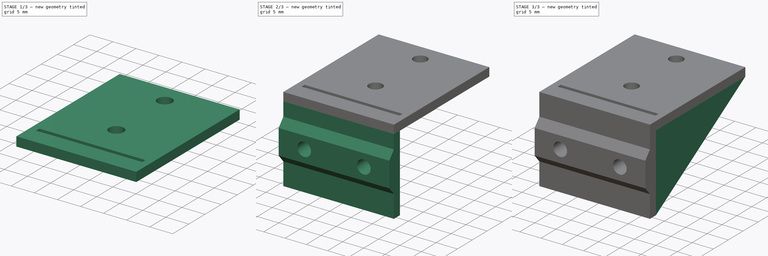
[diagram: build sequence overview — one tinted view per stage of 3, left to right]
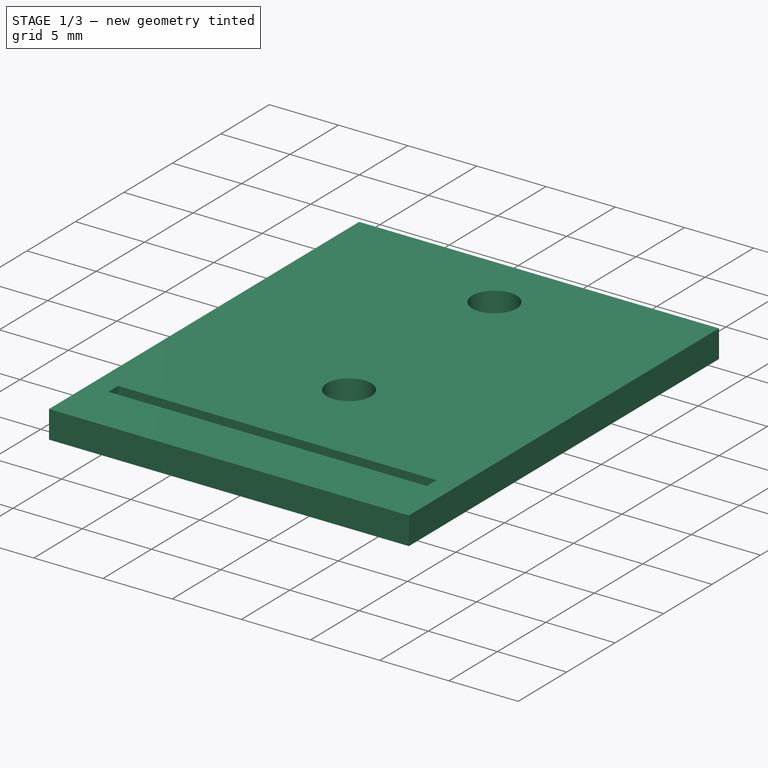
[diagram: stage 1 of 3 — iso view after this stage's code; geometry added in this stage tinted green]
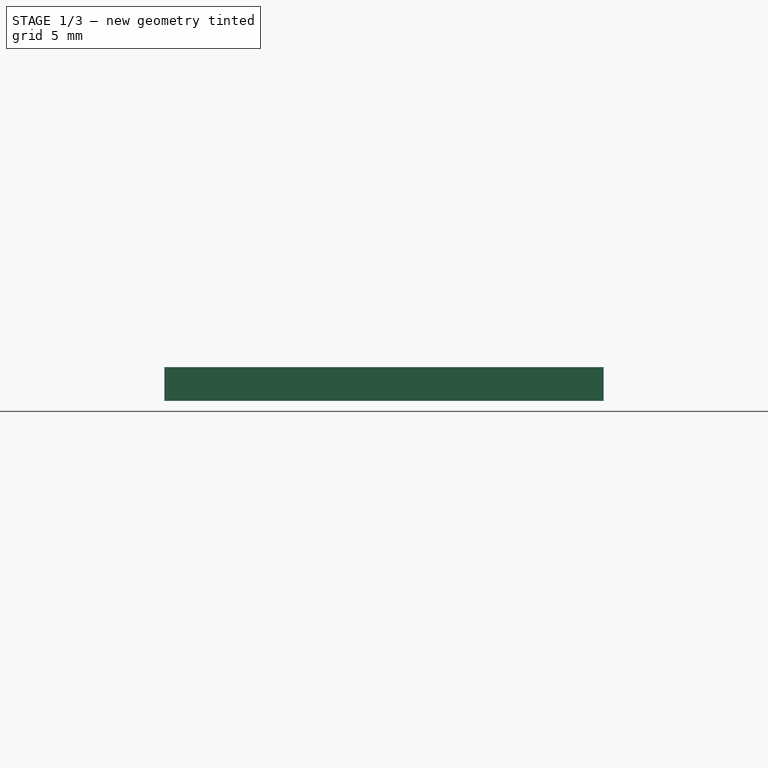
[diagram: stage 1 of 3 — front view after this stage's code; geometry added in this stage tinted green]
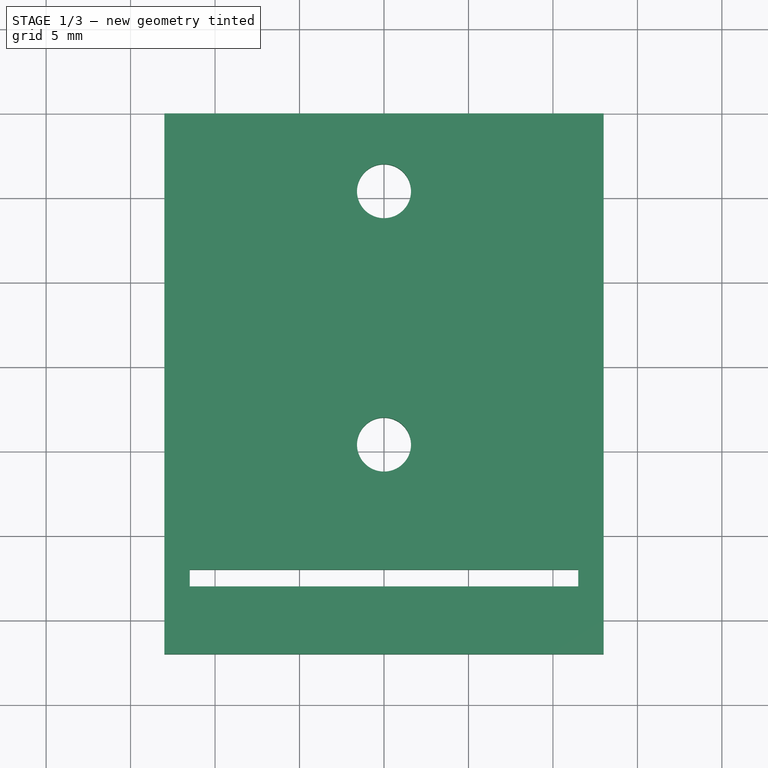
[diagram: stage 1 of 3 — top view after this stage's code; geometry added in this stage tinted green]
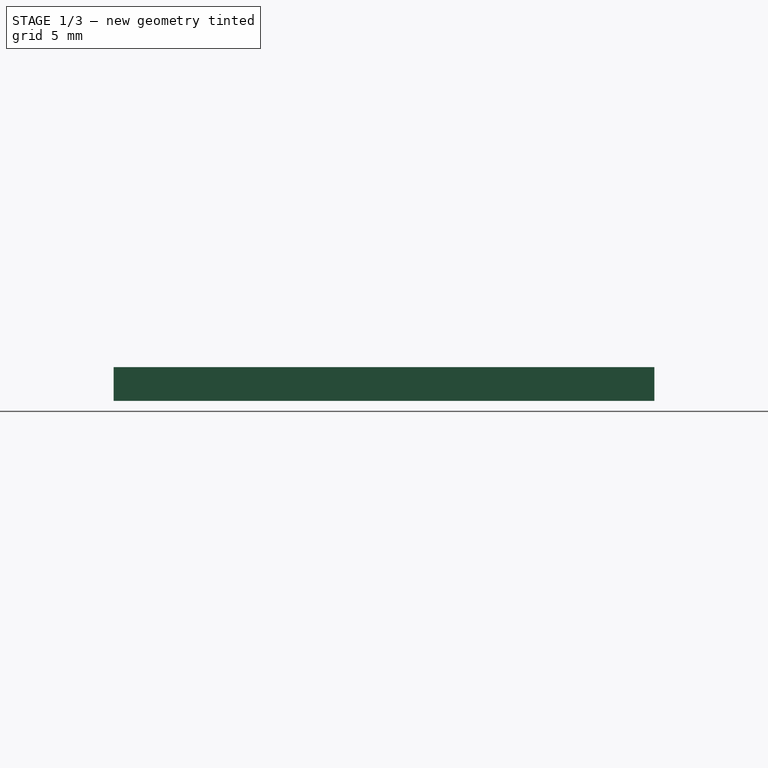
[diagram: stage 1 of 3 — right view after this stage's code; geometry added in this stage tinted green]
FCSTD DOCUMENT  (FreeCAD 0.19R24366 (Git))
Label: case-camera-full
License: All rights reserved
LicenseURL: http://en.wikipedia.org/wiki/All_rights_reserved
objects: PartDesign::Pad×5, Sketcher::SketchObject×4, PartDesign::Pocket×1, PartDesign::LinearPattern×1, PartDesign::Body×1
note: 18 computed .brp shape members not serialized (recipe doc carries the construction recipe); baked Part::Feature solids carry a one-line shape summary decoded from their .brp

FEATURE [Sketcher::SketchObject] Sketch010
  FullyConstrained = true
  MapMode = 5
  Support = -> [XY_Plane002]
  sketch-geometry (17):
    g0: LineSegment StartX=-13 StartY=15 StartZ=0 EndX=13 EndY=15 EndZ=0
    g1: LineSegment StartX=13 StartY=15 StartZ=0 EndX=13 EndY=-15 EndZ=0
    g2: LineSegment StartX=13 StartY=-15 StartZ=0 EndX=-13 EndY=-15 EndZ=0
    g3: LineSegment StartX=-13 StartY=-15 StartZ=0 EndX=-13 EndY=15 EndZ=0
    g4: LineSegment StartX=-13 StartY=15 StartZ=0 EndX=13 EndY=-15 EndZ=0
    g5: LineSegment StartX=13 StartY=15 StartZ=0 EndX=-13 EndY=-15 EndZ=0
    g6: Circle CenterX=0 CenterY=10.4 CenterZ=0 NormalX=0 NormalY=0 NormalZ=1 AngleXU=0 Radius=1.6
    g7: Circle CenterX=0 CenterY=-4.6 CenterZ=0 NormalX=0 NormalY=0 NormalZ=1 AngleXU=0 Radius=1.6
    g8: GeomPoint X=0 Y=12 Z=0
    g9: GeomPoint X=0 Y=15 Z=0
    g10: GeomPoint X=-13 Y=-12 Z=0
    g11: LineSegment StartX=-11.5 StartY=-12 StartZ=0 EndX=11.5 EndY=-12 EndZ=0
    g12: LineSegment StartX=11.5 StartY=-12 StartZ=0 EndX=11.5 EndY=-13 EndZ=0
    g13: LineSegment StartX=11.5 StartY=-13 StartZ=0 EndX=-11.5 EndY=-13 EndZ=0
    g14: LineSegment StartX=-11.5 StartY=-13 StartZ=0 EndX=-11.5 EndY=-12 EndZ=0
    g15: LineSegment StartX=-11.5 StartY=-12 StartZ=0 EndX=0 EndY=-12 EndZ=0
    g16: LineSegment StartX=0 StartY=-12 StartZ=0 EndX=11.5 EndY=-12 EndZ=0
  constraints (45):
    c: Coincident(g0,g1)
    c: Coincident(g1,g2)
    c: Coincident(g2,g3)
    c: Coincident(g3,g0)
    c: Horizontal(g0)
    c: Horizontal(g2)
    c: Vertical(g1)
    c: Vertical(g3)
    c: Coincident(g4,g0)
    c: Coincident(g4,g1)
    c: Coincident(g5,g0)
    c: Coincident(g5,g2)
    c: PointOnObject(g-1,g5)
    c: PointOnObject(g-1,g4)
    c: DistanceX(g2,g2) = 26
    c: PointOnObject(g6,g-2)
    c: PointOnObject(g7,g-2)
    c: DistanceY(g7,g6) = 15
    c: Equal(g7,g6)
    c: Radius(g6) = 1.6
    c: DistanceY(g3,g3) = 30
    c: PointOnObject(g8,g6)
    c: PointOnObject(g8,g-2)
    c: PointOnObject(g9,g0)
    c: PointOnObject(g9,g-2)
    c: DistanceY(g8,g9) = 3
    c: PointOnObject(g10,g3)
    c: DistanceY(g10,g0) = 27
    c: Coincident(g11,g12)
    c: Coincident(g12,g13)
    c: Coincident(g13,g14)
    c: Coincident(g14,g11)
    c: Horizontal(g11)
    c: Horizontal(g13)
    c: Vertical(g12)
    c: Vertical(g14)
    c: DistanceX(g13,g13) = 23
    c: Coincident(g15,g11)
    c: Coincident(g16,g15)
    c: Coincident(g16,g11)
    c: PointOnObject(g15,g-2)
    c: Equal(g15,g16)
    c: PointOnObject(g15,g11)
    c: DistanceY(g14,g14) = 1
    c: Horizontal(g11,g10)
FEATURE [PartDesign::Pad] Pad009
  Direction = (1,1,1)
  Length = 2
  Length2 = 100
  Profile = -> Sketch010
  Type = 0
FEATURE [PartDesign::Pad] Pad010
  BaseFeature = -> Pad009
  Direction = (1,1,1)
  Length = 2
  Length2 = 100
  Profile = -> Pad009 [Face3]
  Type = 0
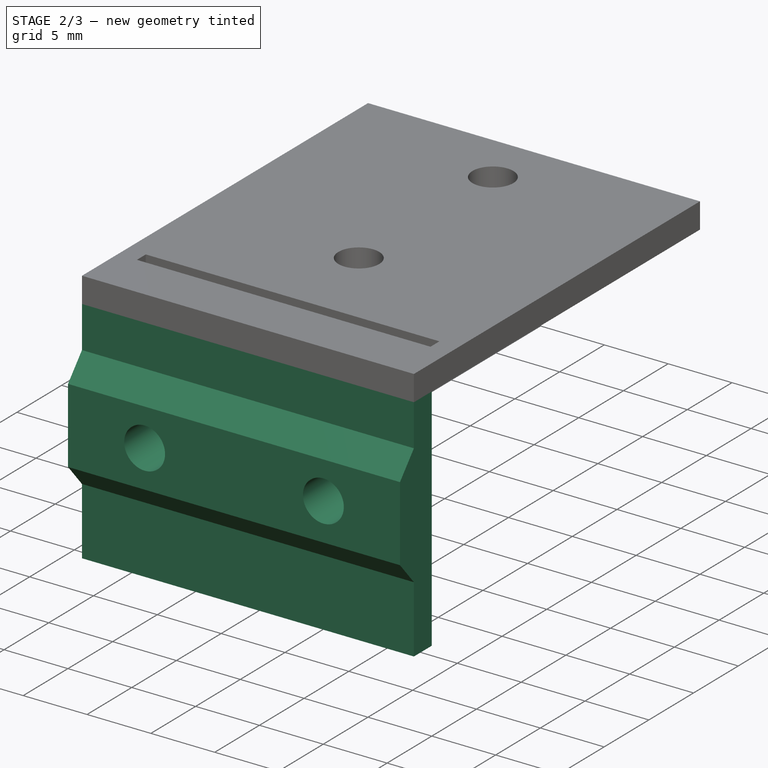
[diagram: stage 2 of 3 — iso view after this stage's code; geometry added in this stage tinted green]
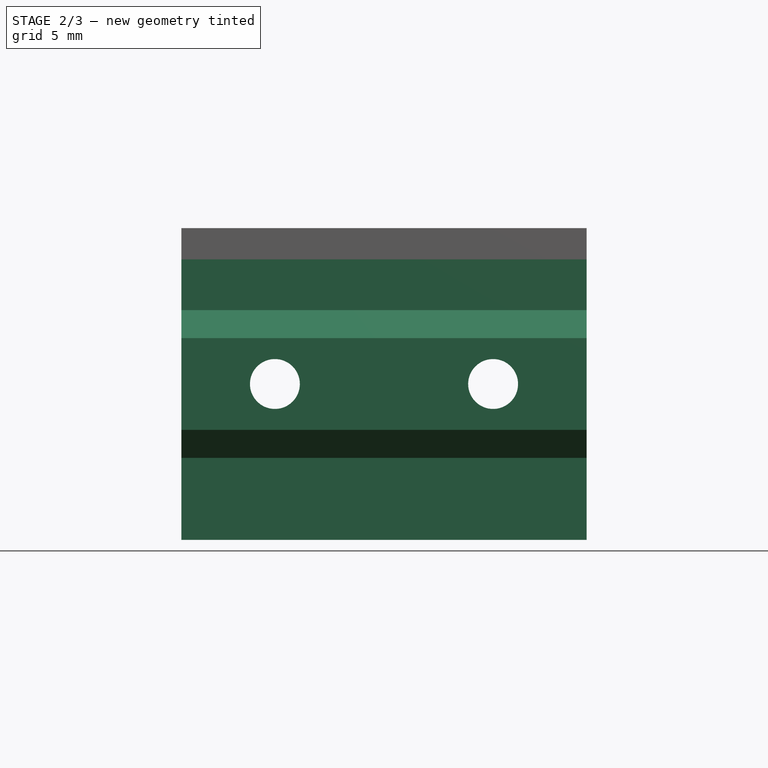
[diagram: stage 2 of 3 — front view after this stage's code; geometry added in this stage tinted green]
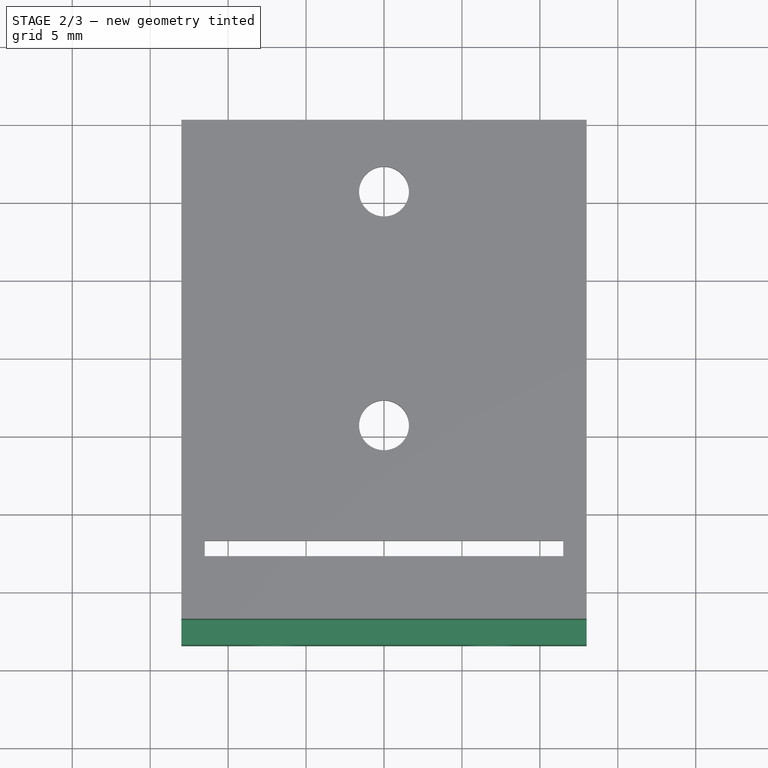
[diagram: stage 2 of 3 — top view after this stage's code; geometry added in this stage tinted green]
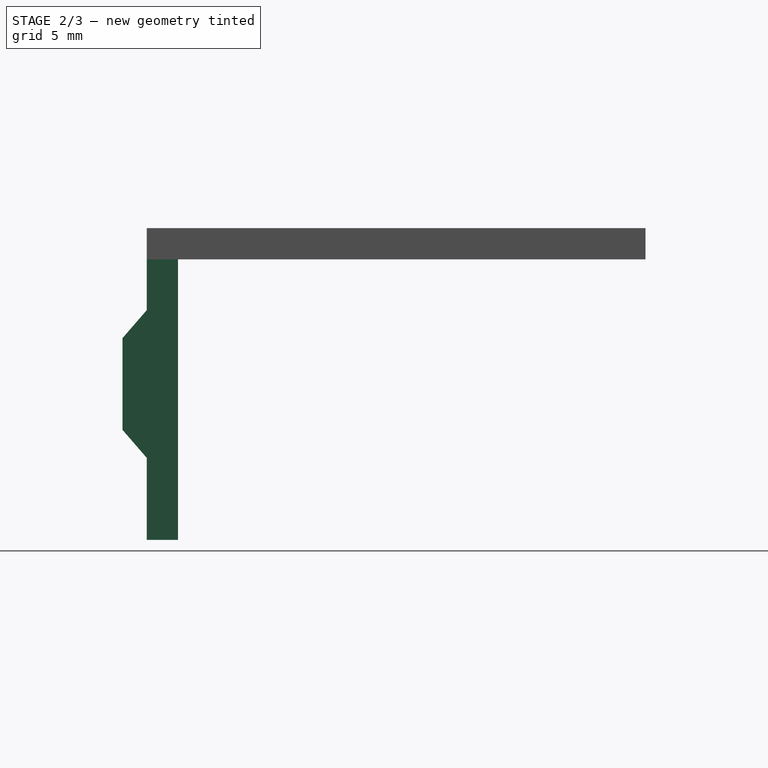
[diagram: stage 2 of 3 — right view after this stage's code; geometry added in this stage tinted green]
FEATURE [PartDesign::Pad] Pad011
  BaseFeature = -> Pad010
  Direction = (1,1,1)
  Length = 18
  Length2 = 100
  Profile = -> Pad010 [Face8]
  Type = 0
FEATURE [Sketcher::SketchObject] Sketch011
  ExternalGeometry = -> [Pad011]
  FullyConstrained = true
  MapMode = 5
  Placement = pos=(-13,0,0) rot=(0.57735,-0.57735,-0.57735;2.0944rad)
  Support = -> [Pad011]
  sketch-geometry (7):
    g0: LineSegment StartX=15 StartY=2 StartZ=0 EndX=15 EndY=-8 EndZ=0
    g1: LineSegment StartX=15 StartY=-18 StartZ=0 EndX=15 EndY=-8 EndZ=0
    g2: LineSegment StartX=17 StartY=-8 StartZ=0 EndX=17 EndY=-3.26 EndZ=0
    g3: LineSegment StartX=17 StartY=-3.26 StartZ=0 EndX=18.56 EndY=-5.06 EndZ=0
    g4: LineSegment StartX=18.56 StartY=-5.06 StartZ=0 EndX=18.56 EndY=-10.94 EndZ=0
    g5: LineSegment StartX=18.56 StartY=-10.94 StartZ=0 EndX=17 EndY=-12.74 EndZ=0
    g6: LineSegment StartX=17 StartY=-12.74 StartZ=0 EndX=17 EndY=-8 EndZ=0
  constraints (21):
    c: DistanceY(g-4,g-3) = 20
    c: Coincident(g0,g-3)
    c: Vertical(g0)
    c: Coincident(g1,g-4)
    c: Coincident(g1,g0)
    c: Equal(g0,g1)
    c: Vertical(g2)
    c: Coincident(g2,g3)
    c: Coincident(g3,g4)
    c: Vertical(g4)
    c: Coincident(g4,g5)
    c: Coincident(g5,g6)
    c: Vertical(g6)
    c: Coincident(g6,g2)
    c: Equal(g2,g6)
    c: Horizontal(g2,g0)
    c: PointOnObject(g2,g-5)
    c: Equal(g5,g3)
    c: DistanceY(g5,g2) = 9.48
    c: DistanceY(g4,g4) = 5.88
    c: DistanceX(g5,g4) = 1.56
FEATURE [PartDesign::Pad] Pad012
  BaseFeature = -> Pad011
  Direction = (1,1,1)
  Length = 10
  Length2 = 100
  Profile = -> Sketch011
  Reversed = true
  Type = 3
  UpToFace = -> Pad011 [Face18]
FEATURE [Sketcher::SketchObject] Sketch012
  ExternalGeometry = -> [Pad012]
  FullyConstrained = true
  MapMode = 5
  Placement = pos=(0,-18.56,0) rot=(1,0,0;1.5708rad)
  Support = -> [Pad012]
  sketch-geometry (6):
    g0: LineSegment StartX=-13 StartY=-5.06 StartZ=0 EndX=-13 EndY=-8 EndZ=0
    g1: LineSegment StartX=-13 StartY=-8 StartZ=0 EndX=-13 EndY=-10.94 EndZ=0
    g2: LineSegment StartX=-7 StartY=-8 StartZ=0 EndX=0 EndY=-8 EndZ=0
    g3: LineSegment StartX=0 StartY=-8 StartZ=0 EndX=7 EndY=-8 EndZ=0
    g4: Circle CenterX=-7 CenterY=-8 CenterZ=0 NormalX=0 NormalY=0 NormalZ=1 AngleXU=0 Radius=1.6
    g5: Circle CenterX=7 CenterY=-8 CenterZ=0 NormalX=0 NormalY=0 NormalZ=1 AngleXU=0 Radius=1.6
  constraints (16):
    c: Coincident(g0,g-4)
    c: Coincident(g1,g0)
    c: Coincident(g1,g-4)
    c: PointOnObject(g0,g-4)
    c: Equal(g0,g1)
    c: Horizontal(g2)
    c: Horizontal(g3)
    c: PointOnObject(g3,g-2)
    c: Coincident(g2,g3)
    c: Horizontal(g2,g0)
    c: Equal(g3,g2)
    c: Coincident(g4,g2)
    c: Coincident(g5,g3)
    c: DistanceX(g0,g4) = 6
    c: Equal(g5,g4)
    c: Radius(g5) = 1.6
FEATURE [PartDesign::Pocket] Pocket006
  BaseFeature = -> Pad012
  Length = 5
  Length2 = 100
  Profile = -> Sketch012
  Type = 1
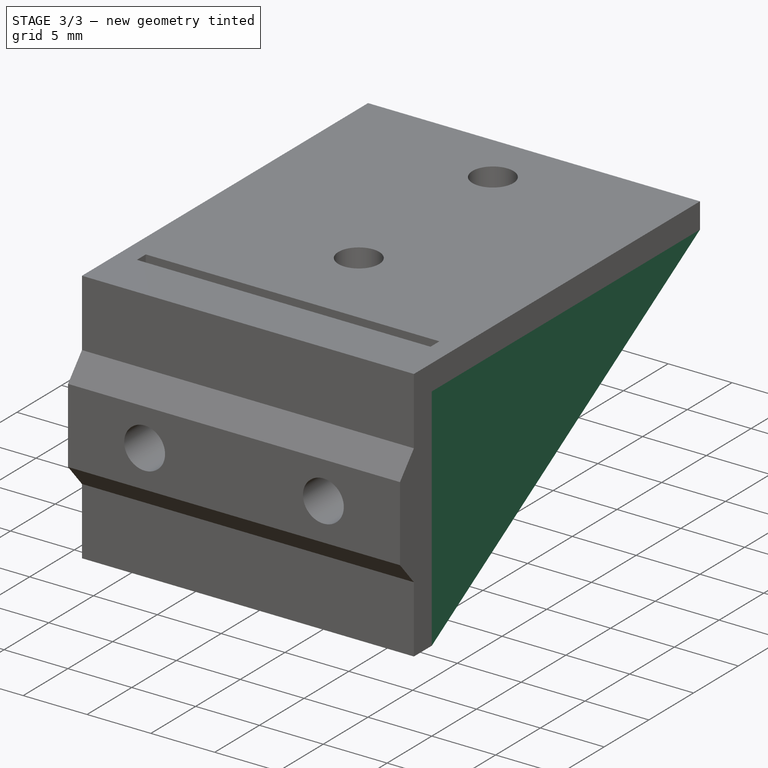
[diagram: stage 3 of 3 — iso view after this stage's code; geometry added in this stage tinted green]
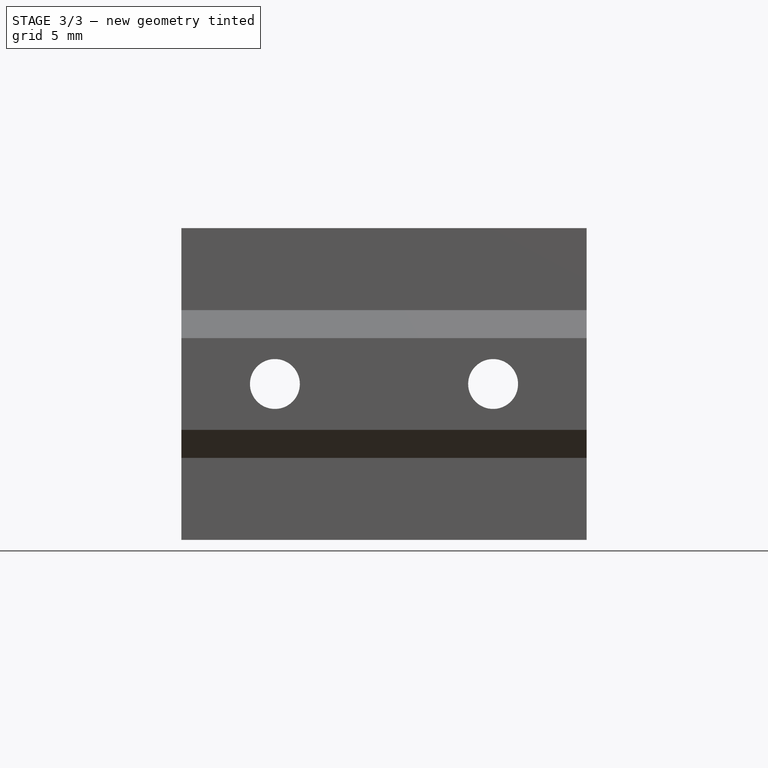
[diagram: stage 3 of 3 — front view after this stage's code; geometry added in this stage tinted green]
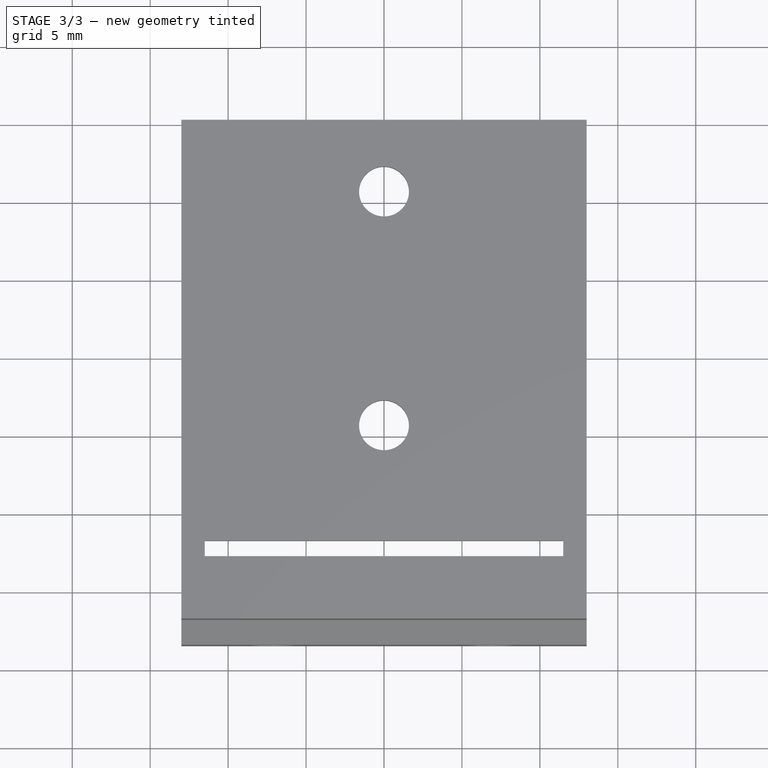
[diagram: stage 3 of 3 — top view after this stage's code; geometry added in this stage tinted green]
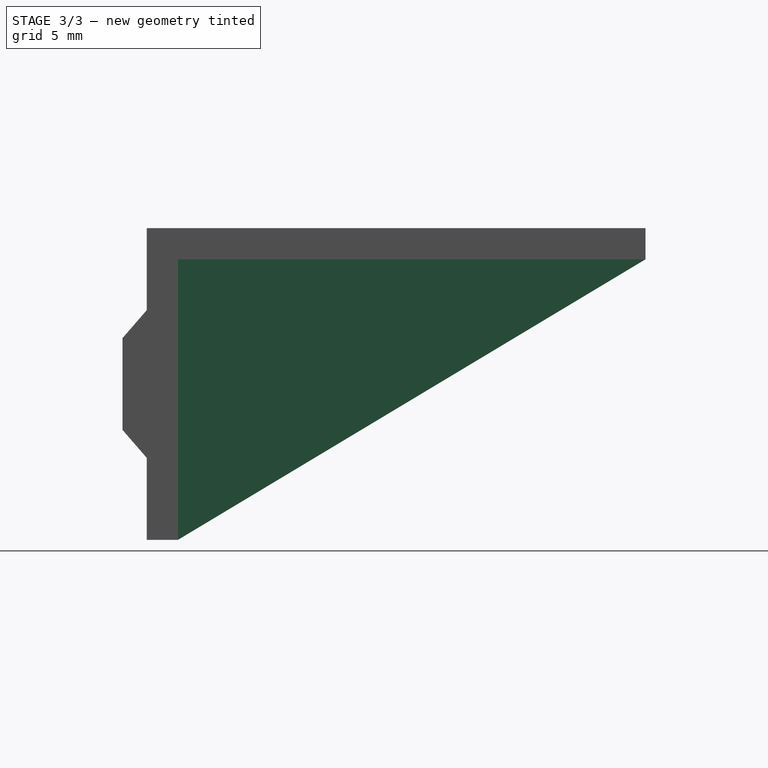
[diagram: stage 3 of 3 — right view after this stage's code; geometry added in this stage tinted green]
FEATURE [Sketcher::SketchObject] Sketch013
  ExternalGeometry = -> [Pocket006]
  FullyConstrained = true
  MapMode = 5
  Placement = pos=(-13,0,0) rot=(0.57735,-0.57735,-0.57735;2.0944rad)
  Support = -> [Pocket006]
  sketch-geometry (3):
    g0: LineSegment StartX=-15 StartY=0 StartZ=0 EndX=15 EndY=-18 EndZ=0
    g1: LineSegment StartX=15 StartY=0 StartZ=0 EndX=15 EndY=-18 EndZ=0
    g2: LineSegment StartX=-15 StartY=0 StartZ=0 EndX=15 EndY=0 EndZ=0
  constraints (6):
    c: Coincident(g0,g-3)
    c: Coincident(g0,g-4)
    c: Coincident(g1,g-4)
    c: Coincident(g2,g0)
    c: Coincident(g2,g1)
    c: Coincident(g1,g0)
FEATURE [PartDesign::Pad] Pad013
  BaseFeature = -> Pocket006
  Direction = (1,1,1)
  Length = 1.2
  Length2 = 100
  Profile = -> Sketch013
  Reversed = true
  Type = 0
FEATURE [PartDesign::LinearPattern] LinearPattern
  BaseFeature = -> Pad013
  Direction = -> X_Axis002
  Length = 24.8
  Occurrences = 2
  Originals = -> [Pad013]
FEATURE [PartDesign::Body] Body002  label="suporte"
  Group = -> [Sketch010,Pad009,Pad010,Pad011,Sketch011,Pad012,Sketch012,Pocket006,Sketch013,Pad013,LinearPattern]
  Origin = -> Origin002
  Placement = pos=(-25,78,0) rot=(0,0,1;0rad)
  Tip = -> LinearPattern
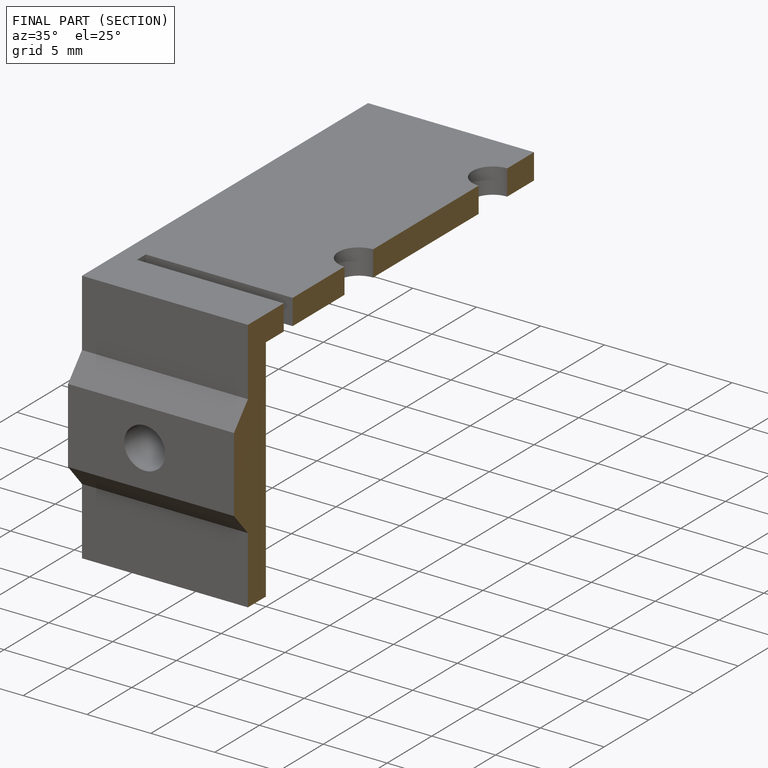
[diagram: finished part — half-section view (interior)]
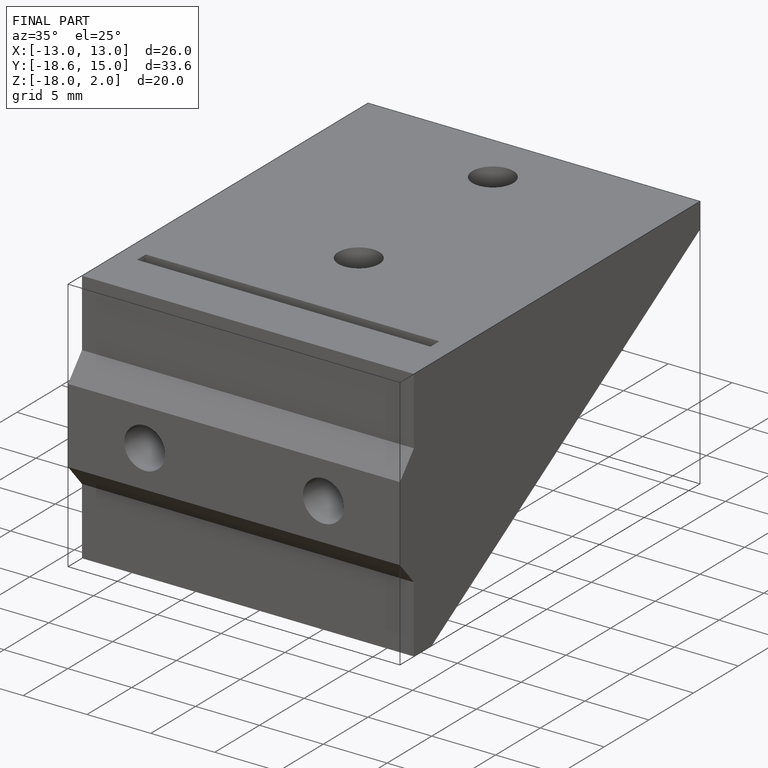
[diagram: finished part — iso view with bounding-box wireframe]
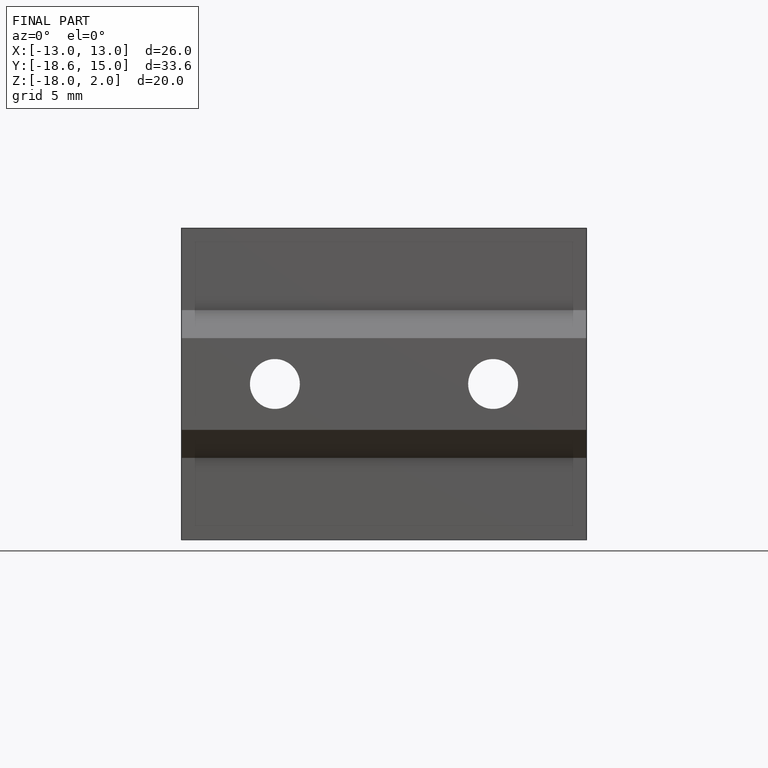
[diagram: finished part — front view with bounding-box wireframe]
